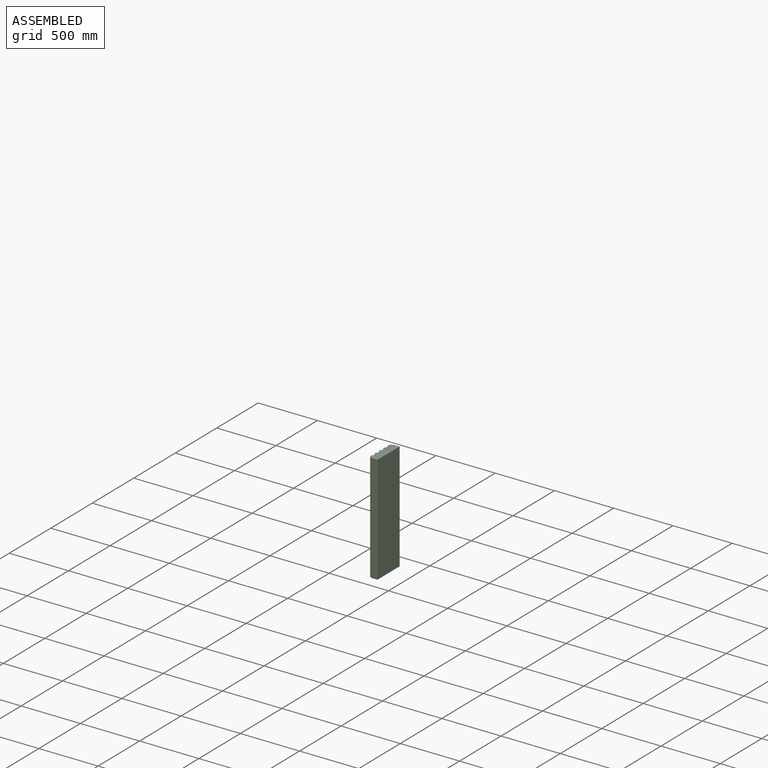
[diagram: assembled view]
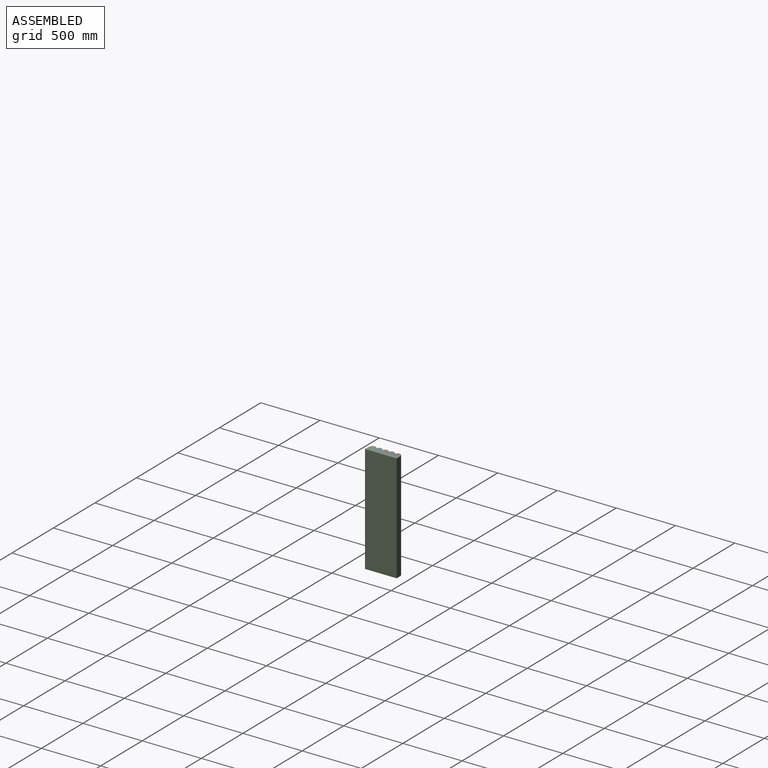
[diagram: assembled view, second angle]
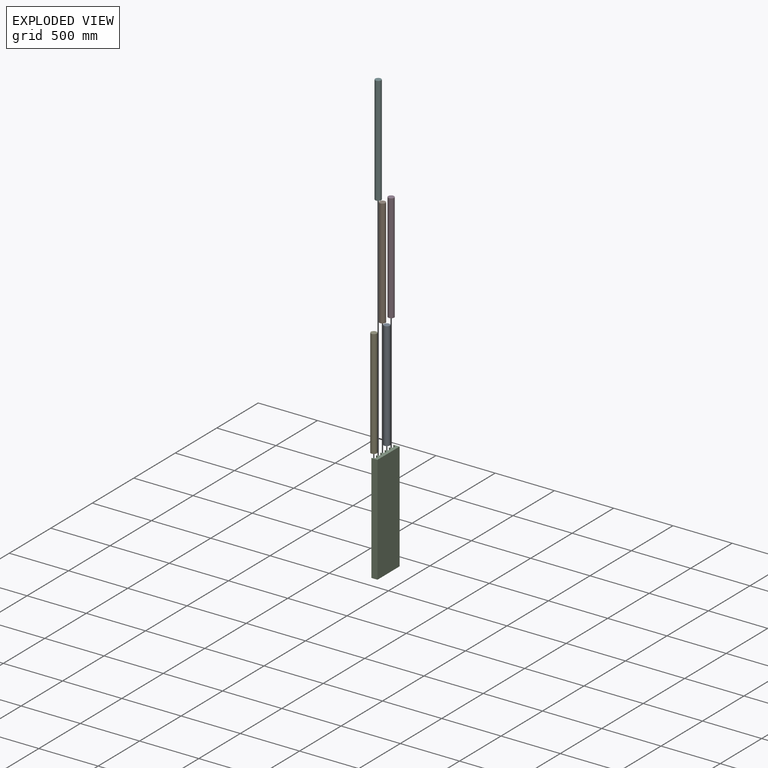
[diagram: exploded view]
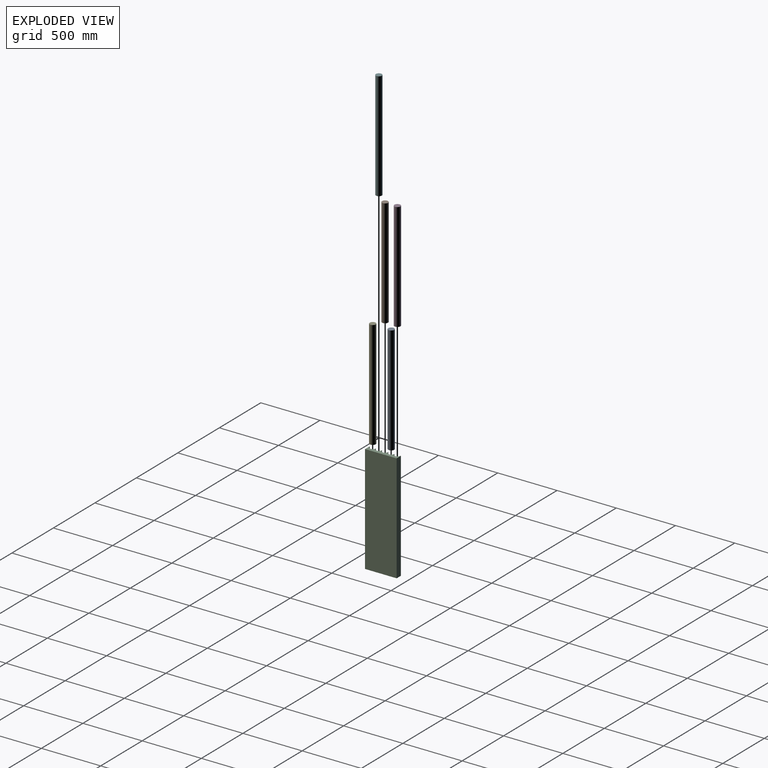
[diagram: exploded view, second angle]
ASSEMBLY  parts=6 mates=8
PART A: 3 faces, bbox 50.8x914.4x50.8 mm
  f0: cylinder r=25.4mm len=914.4mm, axis (0,-1,0), area 145931.8mm2, adj f1,f2
  f1: plane 50.8x50.8mm, normal (0,1,0), area 2026.8mm2, adj f0
  f2: plane 50.8x50.8mm, normal (0,-1,0), area 2026.8mm2, adj f0
PART B: 3 faces, bbox 50.8x914.4x50.8 mm
  f0: cylinder r=25.4mm len=914.4mm, axis (0,-1,0), area 145931.8mm2, adj f1,f2
  f1: plane 50.8x50.8mm, normal (0,1,0), area 2026.8mm2, adj f0
  f2: plane 50.8x50.8mm, normal (0,-1,0), area 2026.8mm2, adj f0
PART C: 16 faces, bbox 50.8x914.4x266.7 mm
  f0: plane 914.4x3.81mm, normal (-1,0,0), area 3483.9mm2, adj f1,f13,f14,f15
  f1: cylinder r=25.4mm len=914.4mm, axis (0,1,0), area 72965.9mm2, adj f0,f2,f14,f15
  f2: plane 914.4x1.27mm, normal (-1,0,0), area 1161.3mm2, adj f1,f3,f14,f15
  f3: cylinder r=25.4mm len=914.4mm, axis (0,1,0), area 72965.9mm2, adj f2,f4,f14,f15
  f4: plane 914.4x1.27mm, normal (-1,0,0), area 1161.3mm2, adj f3,f5,f14,f15
  f5: cylinder r=25.4mm len=914.4mm, axis (0,1,0), area 72965.9mm2, adj f4,f6,f14,f15
  f6: plane 914.4x1.27mm, normal (-1,0,0), area 1161.3mm2, adj f5,f7,f14,f15
  f7: cylinder r=25.4mm len=914.4mm, axis (0,1,0), area 72965.9mm2, adj f6,f8,f14,f15
  f8: plane 914.4x1.27mm, normal (-1,0,0), area 1161.3mm2, adj f7,f9,f14,f15
  f9: cylinder r=25.4mm len=914.4mm, axis (0,1,0), area 72965.9mm2, adj f8,f10,f14,f15
  f10: plane 914.4x3.81mm, normal (-1,0,0), area 3483.9mm2, adj f9,f11,f14,f15
  f11: plane 914.4x50.8mm, normal (0,0,-1), area 46451.5mm2, adj f10,f12,f14,f15
  f12: plane 914.4x266.7mm, normal (1,0,0), area 243870.5mm2, adj f11,f13,f14,f15
  f13: plane 914.4x50.8mm, normal (0,0,1), area 46451.5mm2, adj f0,f12,f14,f15
  f14: plane 266.7x50.8mm, normal (0,-1,0), area 8481.3mm2, adj f0,f1,f2,f3,f4,f5,f6,f7
  f15: plane 266.7x50.8mm, normal (0,1,0), area 8481.3mm2, adj f0,f1,f2,f3,f4,f5,f6,f7
PART D: 3 faces, bbox 50.8x914.4x50.8 mm
  f0: cylinder r=25.4mm len=914.4mm, axis (0,-1,0), area 145931.8mm2, adj f1,f2
  f1: plane 50.8x50.8mm, normal (0,1,0), area 2026.8mm2, adj f0
  f2: plane 50.8x50.8mm, normal (0,-1,0), area 2026.8mm2, adj f0
PART E: 3 faces, bbox 50.8x914.4x50.8 mm
  f0: cylinder r=25.4mm len=914.4mm, axis (0,-1,0), area 145931.8mm2, adj f1,f2
  f1: plane 50.8x50.8mm, normal (0,1,0), area 2026.8mm2, adj f0
  f2: plane 50.8x50.8mm, normal (0,-1,0), area 2026.8mm2, adj f0
PART F: 3 faces, bbox 50.8x914.4x50.8 mm
  f0: cylinder r=25.4mm len=914.4mm, axis (0,-1,0), area 145931.8mm2, adj f1,f2
  f1: plane 50.8x50.8mm, normal (0,1,0), area 2026.8mm2, adj f0
  f2: plane 50.8x50.8mm, normal (0,-1,0), area 2026.8mm2, adj f0
PLACE A rot(axis=(0.14,-0.7,-0.7),164.1deg) t=(-22.14,95.04,0)mm
PLACE B rot(axis=(1,0,0),90deg) t=(3.99,3.9,0)mm
PLACE C rot(axis=(1,0,0),90deg) t=(0,82.29,914.4)mm
PLACE D rot(axis=(0.14,-0.7,-0.7),164.1deg) t=(-42.09,195.21,0)mm
PLACE E rot(axis=(0.14,-0.7,-0.7),164.1deg) t=(37.7,-205.46,0)mm
PLACE F rot(axis=(0.14,-0.7,-0.7),164.1deg) t=(17.75,-105.3,0)mm
MATE cylindrical C.f1 <-> E.f0  axis (0,0,-1) through (0,-104.14,0)mm
MATE planar D.f0 <-> C.f9  axis (0,0,-1) through (0,104.14,0)mm
MATE planar B.f0 <-> C.f5  axis (0,0,-1) through (0,0,0)mm
MATE planar B.f0 <-> C.f15  axis (0,0,1) through (0,0,914.4)mm
MATE planar E.f0 <-> F.f0  axis (0,0,-1) through (0,-104.14,0)mm
MATE planar A.f0 <-> C.f7  axis (0,0,-1) through (0,52.07,0)mm
MATE planar E.f0 <-> C.f1  axis (0,0,-1) through (0,-104.14,0)mm
MATE planar F.f0 <-> C.f3  axis (0,0,-1) through (0,-52.07,0)mm
